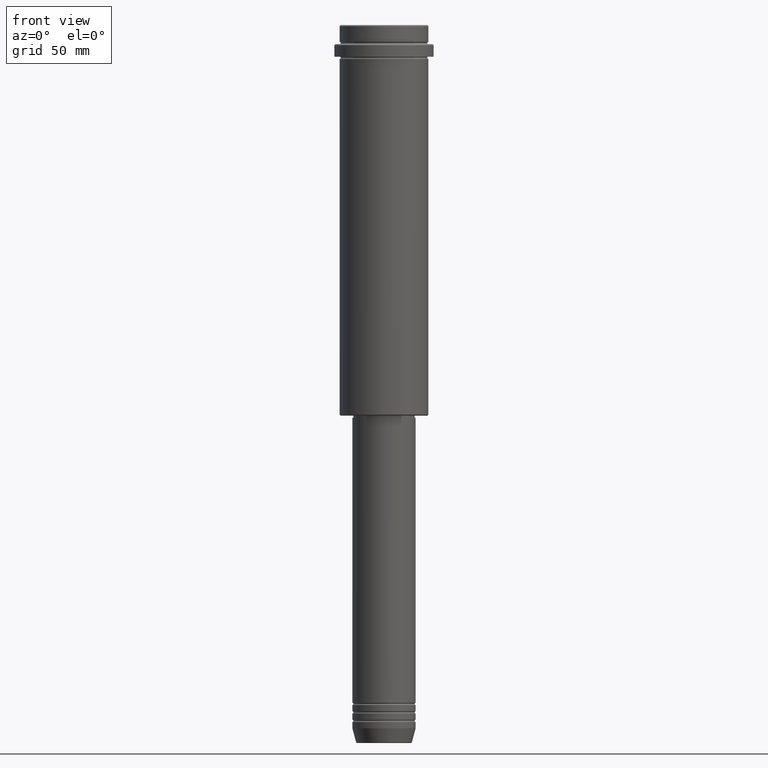
[diagram: clean part render]
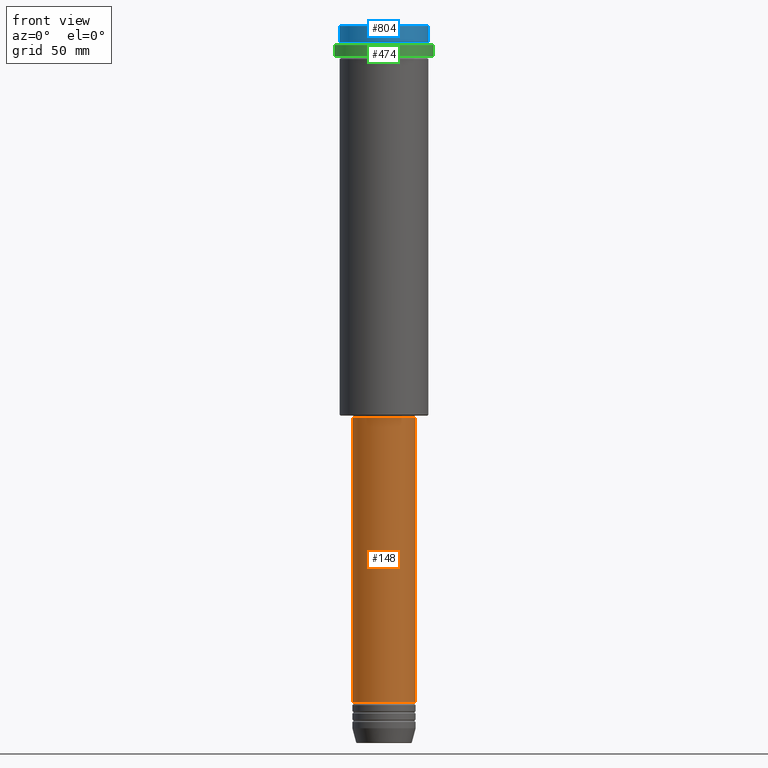
[diagram: same view with three faces highlighted in distinct colors, each labeled with its STEP entity id]
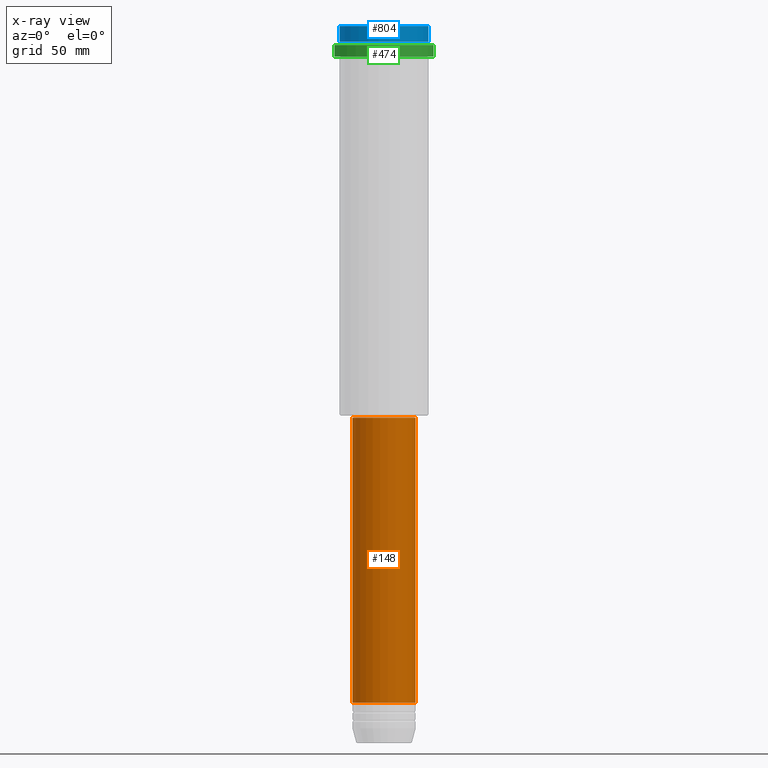
[diagram: x-ray of the same camera — body ghosted, the three highlighted faces saturated]
A machine part, front view with three faces highlighted in distinct colors.
The next image is the same camera in x-ray (body ghosted, the three faces saturated) — at least one of them is partly hidden behind the body in this view.
Their STEP definitions:

[orange] entity #148 — the highlighted cylindrical surface (edge-blend (fillet) strip) has radius 15 mm, axis along (-0, -0, 1).
#21 = ORIENTED_EDGE ( 'NONE', *, *, #111, .F. ) ;
#26 = ORIENTED_EDGE ( 'NONE', *, *, #340, .T. ) ;
#33 = CIRCLE ( 'NONE', #475, 15.00000000000000000 ) ;
#111 = EDGE_CURVE ( 'NONE', #687, #1174, #33, .T. ) ;
#112 = CARTESIAN_POINT ( 'NONE',  ( 15.00000000000000000, 0.000000000000000000, -320.9999999999998863 ) ) ;
#148 = ADVANCED_FACE ( 'NONE', ( #1119 ), #693, .T. ) ;
#152 = DIRECTION ( 'NONE',  ( -0.000000000000000000, -0.000000000000000000, 1.000000000000000000 ) ) ;
#215 = LINE ( 'NONE', #1101, #838 ) ;
#216 = DIRECTION ( 'NONE',  ( 1.000000000000000000, 0.000000000000000000, 0.000000000000000000 ) ) ;
#219 = VECTOR ( 'NONE', #152, 1000.000000000000000 ) ;
#249 = CARTESIAN_POINT ( 'NONE',  ( 15.00000000000000000, 0.000000000000000000, -185.9999999999999432 ) ) ;
#291 = ORIENTED_EDGE ( 'NONE', *, *, #1191, .T. ) ;
#332 = DIRECTION ( 'NONE',  ( -0.000000000000000000, -0.000000000000000000, 1.000000000000000000 ) ) ;
#340 = EDGE_CURVE ( 'NONE', #1371, #1176, #608, .T. ) ;
#342 = CARTESIAN_POINT ( 'NONE',  ( 0.000000000000000000, 0.000000000000000000, -185.9999999999999432 ) ) ;
#475 = AXIS2_PLACEMENT_3D ( 'NONE', #342, #1182, #216 ) ;
#477 = AXIS2_PLACEMENT_3D ( 'NONE', #650, #1070, #539 ) ;
#525 = EDGE_LOOP ( 'NONE', ( #579, #26, #291, #21 ) ) ;
#539 = DIRECTION ( 'NONE',  ( 1.000000000000000000, 0.000000000000000000, 0.000000000000000000 ) ) ;
#579 = ORIENTED_EDGE ( 'NONE', *, *, #910, .F. ) ;
#608 = CIRCLE ( 'NONE', #477, 15.00000000000000000 ) ;
#650 = CARTESIAN_POINT ( 'NONE',  ( 0.000000000000000000, 0.000000000000000000, -320.9999999999998863 ) ) ;
#687 = VERTEX_POINT ( 'NONE', #712 ) ;
#693 = CYLINDRICAL_SURFACE ( 'NONE', #967, 15.00000000000000000 ) ;
#712 = CARTESIAN_POINT ( 'NONE',  ( -15.00000000000000000, 1.836970198721029589E-15, -185.9999999999999432 ) ) ;
#800 = CARTESIAN_POINT ( 'NONE',  ( 0.000000000000000000, 0.000000000000000000, 0.000000000000000000 ) ) ;
#838 = VECTOR ( 'NONE', #332, 1000.000000000000000 ) ;
#907 = DIRECTION ( 'NONE',  ( 1.000000000000000000, 0.000000000000000000, 0.000000000000000000 ) ) ;
#910 = EDGE_CURVE ( 'NONE', #1371, #687, #1240, .T. ) ;
#967 = AXIS2_PLACEMENT_3D ( 'NONE', #800, #1126, #907 ) ;
#1070 = DIRECTION ( 'NONE',  ( -0.000000000000000000, -0.000000000000000000, 1.000000000000000000 ) ) ;
#1101 = CARTESIAN_POINT ( 'NONE',  ( 15.00000000000000000, 0.000000000000000000, 0.000000000000000000 ) ) ;
#1119 = FACE_OUTER_BOUND ( 'NONE', #525, .T. ) ;
#1126 = DIRECTION ( 'NONE',  ( -0.000000000000000000, -0.000000000000000000, 1.000000000000000000 ) ) ;
#1128 = CARTESIAN_POINT ( 'NONE',  ( -15.00000000000000000, 1.836970198721029589E-15, 0.000000000000000000 ) ) ;
#1174 = VERTEX_POINT ( 'NONE', #249 ) ;
#1176 = VERTEX_POINT ( 'NONE', #112 ) ;
#1182 = DIRECTION ( 'NONE',  ( -0.000000000000000000, -0.000000000000000000, 1.000000000000000000 ) ) ;
#1191 = EDGE_CURVE ( 'NONE', #1176, #1174, #215, .T. ) ;
#1240 = LINE ( 'NONE', #1128, #219 ) ;
#1283 = CARTESIAN_POINT ( 'NONE',  ( -15.00000000000000000, 1.836970198721029589E-15, -320.9999999999998863 ) ) ;
#1371 = VERTEX_POINT ( 'NONE', #1283 ) ;

[blue] entity #804 — the highlighted cylindrical surface (partial cylindrical patch) has radius 21 mm, axis along (-0, -0, 1).
#84 = EDGE_CURVE ( 'NONE', #709, #204, #1291, .T. ) ;
#120 = CARTESIAN_POINT ( 'NONE',  ( 0.000000000000000000, 0.000000000000000000, 0.000000000000000000 ) ) ;
#156 = AXIS2_PLACEMENT_3D ( 'NONE', #120, #417, #315 ) ;
#180 = CARTESIAN_POINT ( 'NONE',  ( 0.000000000000000000, 0.000000000000000000, -0.5000000000000628386 ) ) ;
#189 = ORIENTED_EDGE ( 'NONE', *, *, #1103, .F. ) ;
#204 = VERTEX_POINT ( 'NONE', #256 ) ;
#220 = CARTESIAN_POINT ( 'NONE',  ( -20.99999999999999645, 2.571758278209441267E-15, -7.999999999999998224 ) ) ;
#256 = CARTESIAN_POINT ( 'NONE',  ( 20.99999999999999645, 0.000000000000000000, -7.999999999999998224 ) ) ;
#275 = EDGE_LOOP ( 'NONE', ( #189, #282, #646, #299 ) ) ;
#282 = ORIENTED_EDGE ( 'NONE', *, *, #84, .T. ) ;
#299 = ORIENTED_EDGE ( 'NONE', *, *, #582, .T. ) ;
#315 = DIRECTION ( 'NONE',  ( 1.000000000000000000, 0.000000000000000000, 0.000000000000000000 ) ) ;
#326 = CARTESIAN_POINT ( 'NONE',  ( 0.000000000000000000, 0.000000000000000000, -7.999999999999998224 ) ) ;
#397 = DIRECTION ( 'NONE',  ( 1.000000000000000000, 0.000000000000000000, 0.000000000000000000 ) ) ;
#410 = VERTEX_POINT ( 'NONE', #437 ) ;
#417 = DIRECTION ( 'NONE',  ( -0.000000000000000000, -0.000000000000000000, 1.000000000000000000 ) ) ;
#426 = VERTEX_POINT ( 'NONE', #924 ) ;
#437 = CARTESIAN_POINT ( 'NONE',  ( -20.99999999999999645, 2.571758278209441267E-15, -0.5000000000000628386 ) ) ;
#562 = FACE_OUTER_BOUND ( 'NONE', #275, .T. ) ;
#565 = AXIS2_PLACEMENT_3D ( 'NONE', #326, #1292, #656 ) ;
#582 = EDGE_CURVE ( 'NONE', #426, #410, #1038, .T. ) ;
#646 = ORIENTED_EDGE ( 'NONE', *, *, #845, .T. ) ;
#656 = DIRECTION ( 'NONE',  ( 1.000000000000000000, 0.000000000000000000, 0.000000000000000000 ) ) ;
#703 = DIRECTION ( 'NONE',  ( -0.000000000000000000, -0.000000000000000000, 1.000000000000000000 ) ) ;
#709 = VERTEX_POINT ( 'NONE', #220 ) ;
#728 = DIRECTION ( 'NONE',  ( -0.000000000000000000, -0.000000000000000000, 1.000000000000000000 ) ) ;
#804 = ADVANCED_FACE ( 'NONE', ( #562 ), #1296, .T. ) ;
#845 = EDGE_CURVE ( 'NONE', #204, #426, #1355, .T. ) ;
#924 = CARTESIAN_POINT ( 'NONE',  ( 20.99999999999999645, 0.000000000000000000, -0.5000000000000628386 ) ) ;
#937 = DIRECTION ( 'NONE',  ( 0.000000000000000000, 0.000000000000000000, -1.000000000000000000 ) ) ;
#959 = CARTESIAN_POINT ( 'NONE',  ( -20.99999999999999645, 2.571758278209441267E-15, 0.000000000000000000 ) ) ;
#1038 = CIRCLE ( 'NONE', #1134, 20.99999999999999645 ) ;
#1103 = EDGE_CURVE ( 'NONE', #709, #410, #1172, .T. ) ;
#1106 = CARTESIAN_POINT ( 'NONE',  ( 20.99999999999999645, 0.000000000000000000, 0.000000000000000000 ) ) ;
#1134 = AXIS2_PLACEMENT_3D ( 'NONE', #180, #937, #397 ) ;
#1172 = LINE ( 'NONE', #959, #1253 ) ;
#1200 = VECTOR ( 'NONE', #703, 1000.000000000000000 ) ;
#1253 = VECTOR ( 'NONE', #728, 1000.000000000000000 ) ;
#1291 = CIRCLE ( 'NONE', #565, 20.99999999999999645 ) ;
#1292 = DIRECTION ( 'NONE',  ( -0.000000000000000000, -0.000000000000000000, 1.000000000000000000 ) ) ;
#1296 = CYLINDRICAL_SURFACE ( 'NONE', #156, 20.99999999999999645 ) ;
#1355 = LINE ( 'NONE', #1106, #1200 ) ;

[green] entity #474 — the highlighted cylindrical surface (partial cylindrical patch) has radius 23.5 mm, axis along (-0, -0, 1).
#17 = CIRCLE ( 'NONE', #744, 23.50000000000000355 ) ;
#45 = EDGE_CURVE ( 'NONE', #634, #864, #1399, .T. ) ;
#57 = CARTESIAN_POINT ( 'NONE',  ( 23.50000000000000000, 0.000000000000000000, 0.000000000000000000 ) ) ;
#141 = CARTESIAN_POINT ( 'NONE',  ( 0.000000000000000000, 0.000000000000000000, 0.000000000000000000 ) ) ;
#168 = CARTESIAN_POINT ( 'NONE',  ( -23.50000000000000711, 2.877919977996281109E-15, -15.00000000000000178 ) ) ;
#188 = CARTESIAN_POINT ( 'NONE',  ( 0.000000000000000000, 0.000000000000000000, -9.499999999999973355 ) ) ;
#312 = AXIS2_PLACEMENT_3D ( 'NONE', #188, #414, #534 ) ;
#317 = DIRECTION ( 'NONE',  ( -0.000000000000000000, -0.000000000000000000, 1.000000000000000000 ) ) ;
#377 = ORIENTED_EDGE ( 'NONE', *, *, #1105, .T. ) ;
#414 = DIRECTION ( 'NONE',  ( 0.000000000000000000, 0.000000000000000000, -1.000000000000000000 ) ) ;
#415 = DIRECTION ( 'NONE',  ( -0.000000000000000000, -0.000000000000000000, 1.000000000000000000 ) ) ;
#439 = CARTESIAN_POINT ( 'NONE',  ( -23.50000000000000000, 2.877919977996280320E-15, 0.000000000000000000 ) ) ;
#474 = ADVANCED_FACE ( 'NONE', ( #706 ), #1117, .T. ) ;
#524 = VERTEX_POINT ( 'NONE', #1008 ) ;
#534 = DIRECTION ( 'NONE',  ( 1.000000000000000000, 0.000000000000000000, 0.000000000000000000 ) ) ;
#548 = ORIENTED_EDGE ( 'NONE', *, *, #1124, .T. ) ;
#572 = CARTESIAN_POINT ( 'NONE',  ( -23.50000000000000000, 2.877919977996280320E-15, -9.499999999999973355 ) ) ;
#591 = CIRCLE ( 'NONE', #312, 23.50000000000000000 ) ;
#634 = VERTEX_POINT ( 'NONE', #168 ) ;
#691 = DIRECTION ( 'NONE',  ( -0.000000000000000000, -0.000000000000000000, 1.000000000000000000 ) ) ;
#706 = FACE_OUTER_BOUND ( 'NONE', #1294, .T. ) ;
#710 = CARTESIAN_POINT ( 'NONE',  ( 0.000000000000000000, 0.000000000000000000, -15.00000000000000178 ) ) ;
#744 = AXIS2_PLACEMENT_3D ( 'NONE', #710, #1033, #841 ) ;
#815 = VECTOR ( 'NONE', #415, 1000.000000000000000 ) ;
#841 = DIRECTION ( 'NONE',  ( 1.000000000000000000, 0.000000000000000000, 0.000000000000000000 ) ) ;
#864 = VERTEX_POINT ( 'NONE', #572 ) ;
#929 = LINE ( 'NONE', #57, #997 ) ;
#997 = VECTOR ( 'NONE', #317, 1000.000000000000000 ) ;
#1008 = CARTESIAN_POINT ( 'NONE',  ( 23.50000000000000355, 0.000000000000000000, -15.00000000000000178 ) ) ;
#1018 = EDGE_CURVE ( 'NONE', #524, #1388, #929, .T. ) ;
#1033 = DIRECTION ( 'NONE',  ( -0.000000000000000000, -0.000000000000000000, 1.000000000000000000 ) ) ;
#1046 = ORIENTED_EDGE ( 'NONE', *, *, #1018, .T. ) ;
#1105 = EDGE_CURVE ( 'NONE', #1388, #864, #591, .T. ) ;
#1117 = CYLINDRICAL_SURFACE ( 'NONE', #1269, 23.50000000000000000 ) ;
#1122 = DIRECTION ( 'NONE',  ( 1.000000000000000000, 0.000000000000000000, 0.000000000000000000 ) ) ;
#1124 = EDGE_CURVE ( 'NONE', #634, #524, #17, .T. ) ;
#1269 = AXIS2_PLACEMENT_3D ( 'NONE', #141, #691, #1122 ) ;
#1294 = EDGE_LOOP ( 'NONE', ( #1372, #548, #1046, #377 ) ) ;
#1372 = ORIENTED_EDGE ( 'NONE', *, *, #45, .F. ) ;
#1374 = CARTESIAN_POINT ( 'NONE',  ( 23.50000000000000000, 0.000000000000000000, -9.499999999999973355 ) ) ;
#1388 = VERTEX_POINT ( 'NONE', #1374 ) ;
#1399 = LINE ( 'NONE', #439, #815 ) ;